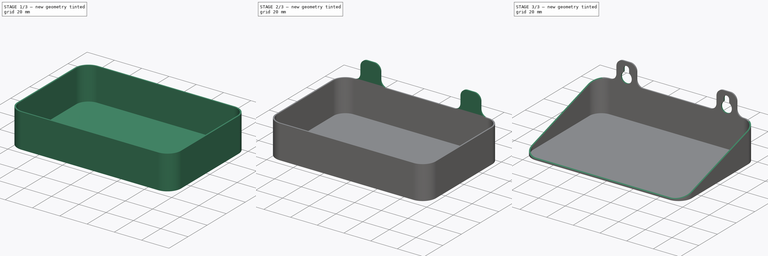
[diagram: build sequence overview — one tinted view per stage of 3, left to right]
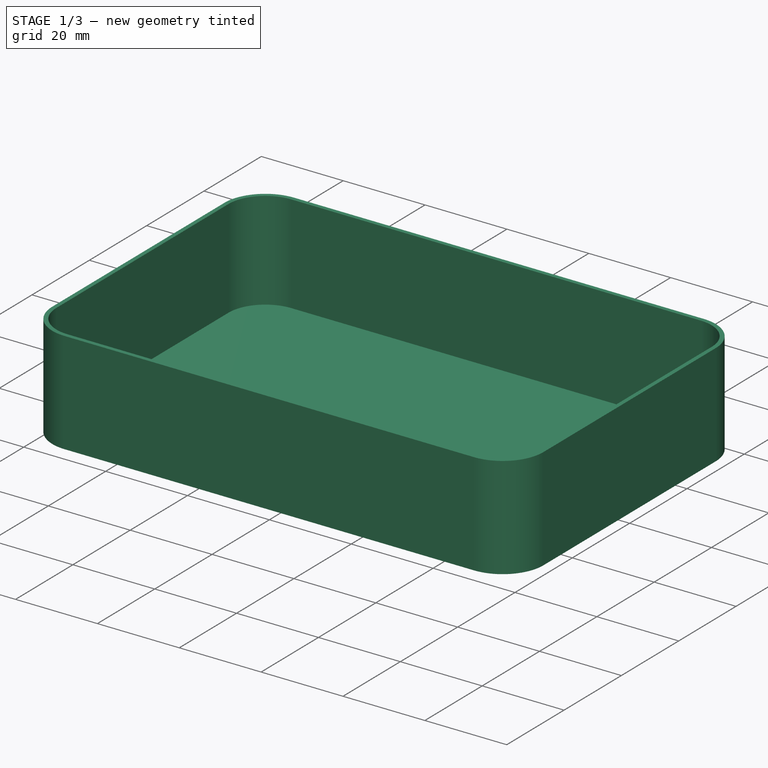
[diagram: stage 1 of 3 — iso view after this stage's code; geometry added in this stage tinted green]
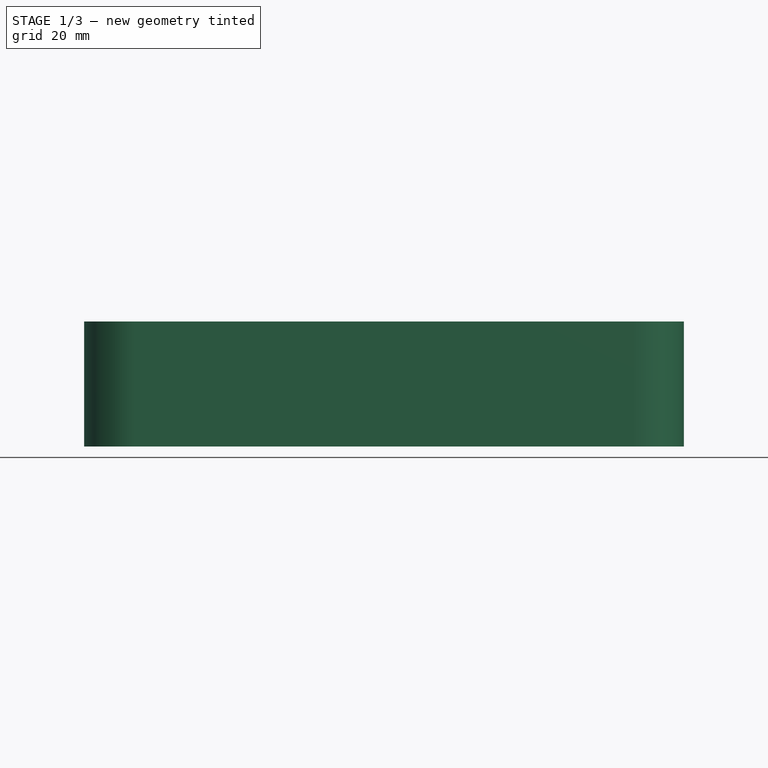
[diagram: stage 1 of 3 — front view after this stage's code; geometry added in this stage tinted green]
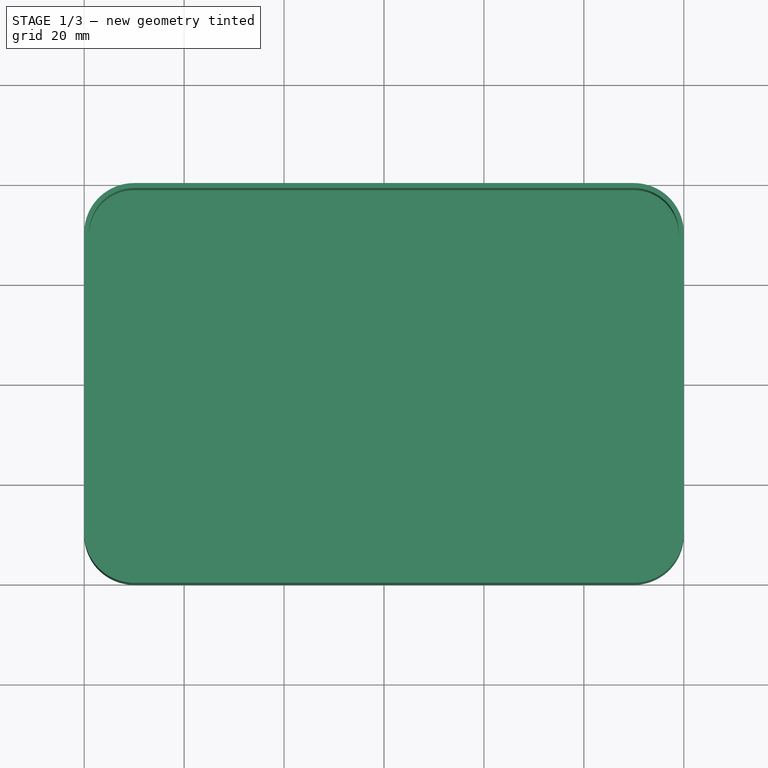
[diagram: stage 1 of 3 — top view after this stage's code; geometry added in this stage tinted green]
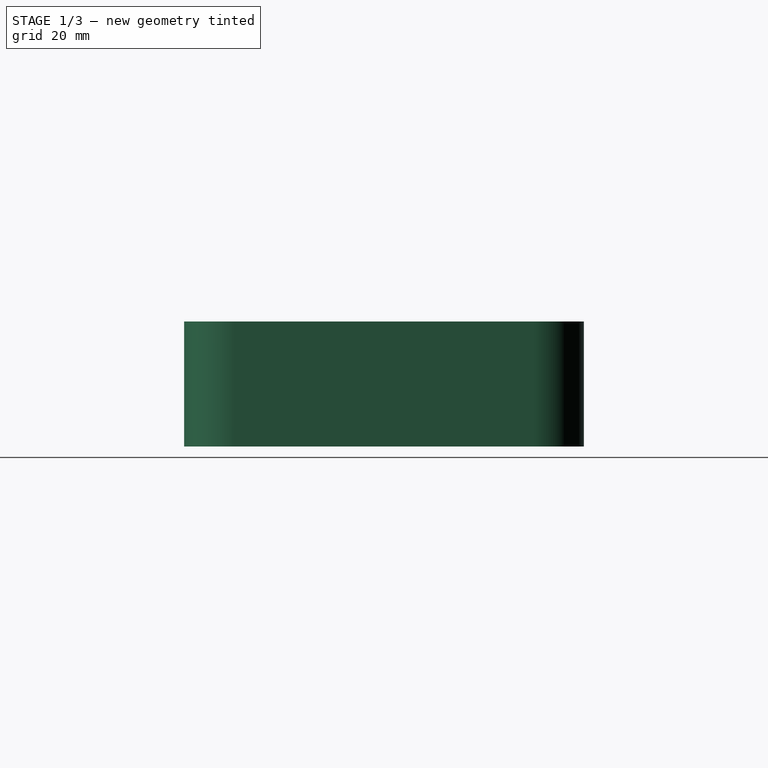
[diagram: stage 1 of 3 — right view after this stage's code; geometry added in this stage tinted green]
FCSTD DOCUMENT  (FreeCAD 1.0R39319 (Git))
Label: Cork board bin
License: All rights reserved
objects: Sketcher::SketchObject×4, PartDesign::Pad×2, PartDesign::Pocket×2, PartDesign::Thickness×1, PartDesign::Fillet×1, PartDesign::Body×1
note: 27 computed .brp shape members not serialized (recipe doc carries the construction recipe); baked Part::Feature solids carry a one-line shape summary decoded from their .brp

FEATURE [Sketcher::SketchObject] Sketch
  ArcFitTolerance = 1e-06
  AttachmentSupport = -> [XY_Plane]
  FullyConstrained = true
  MakeInternals = false
  MapMode = 5
  sketch-geometry (10):
    g0: LineSegment StartX=-50 StartY=-40 StartZ=0 EndX=50 EndY=-40 EndZ=0
    g1: LineSegment StartX=60 StartY=-30 StartZ=0 EndX=60 EndY=30 EndZ=0
    g2: LineSegment StartX=50 StartY=40 StartZ=0 EndX=-50 EndY=40 EndZ=0
    g3: LineSegment StartX=-60 StartY=30 StartZ=0 EndX=-60 EndY=-30 EndZ=0
    g4: ArcOfCircle CenterX=-50 CenterY=-30 CenterZ=0 NormalX=0 NormalY=0 NormalZ=1 AngleXU=0 Radius=10 StartAngle=3.14159 EndAngle=4.71239
    g5: ArcOfCircle CenterX=50 CenterY=-30 CenterZ=0 NormalX=0 NormalY=0 NormalZ=1 AngleXU=0 Radius=10 StartAngle=4.71239 EndAngle=6.28319
    g6: ArcOfCircle CenterX=50 CenterY=30 CenterZ=0 NormalX=0 NormalY=0 NormalZ=1 AngleXU=0 Radius=10 StartAngle=2.127e-13 EndAngle=1.5708
    g7: ArcOfCircle CenterX=-50 CenterY=30 CenterZ=0 NormalX=0 NormalY=0 NormalZ=1 AngleXU=0 Radius=10 StartAngle=1.5708 EndAngle=3.14159
    g8: GeomPoint [constr] X=60 Y=40 Z=0
    g9: GeomPoint [constr] X=0 Y=0 Z=0
  constraints (22):
    c: Tangent(g0,g4) = -1.5708
    c: Tangent(g0,g5) = -1.5708
    c: Tangent(g1,g5) = -1.5708
    c: Tangent(g1,g6) = -1.5708
    c: Tangent(g2,g6) = -1.5708
    c: Tangent(g2,g7) = -1.5708
    c: Tangent(g3,g7) = -1.5708
    c: Tangent(g3,g4) = -1.5708
    c: Horizontal(g0)
    c: Horizontal(g2)
    c: Vertical(g1)
    c: Vertical(g3)
    c: Equal(g4,g5)
    c: Equal(g5,g6)
    c: Equal(g6,g7)
    c: Symmetric(g2,g0,g9)
    c: PointOnObject(g8,g1)
    c: PointOnObject(g8,g2)
    c: Distance(g1,g3) = 120
    c: Distance(g0,g2) = 80
    c: Radius(g5) = 10
    c: Coincident(g9,g-1)
FEATURE [PartDesign::Pad] Pad
  Direction = (0,0,1)
  Length = 25
  Length2 = 10
  Profile = -> Sketch
  ReferenceAxis = -> Sketch [N_Axis]
  Refine = true
  Suppressed = false
  Type = 0
FEATURE [PartDesign::Thickness] Thickness
  Base = -> Pad [Face10]
  BaseFeature = -> Pad
  Intersection = false
  Join = 0
  Mode = 1
  Refine = true
  Reversed = true
  SupportTransform = false
  Suppressed = false
  Value = 1
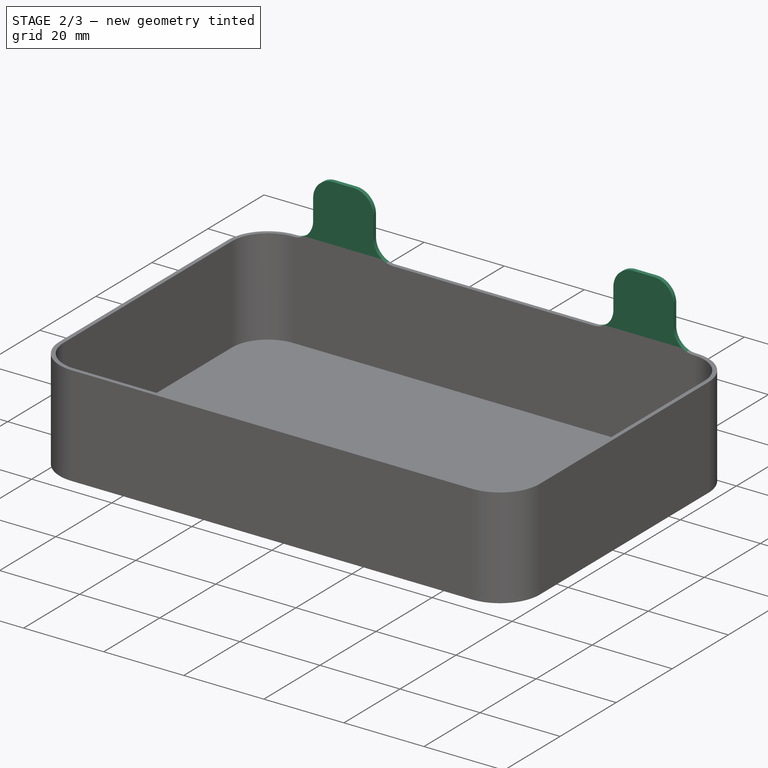
[diagram: stage 2 of 3 — iso view after this stage's code; geometry added in this stage tinted green]
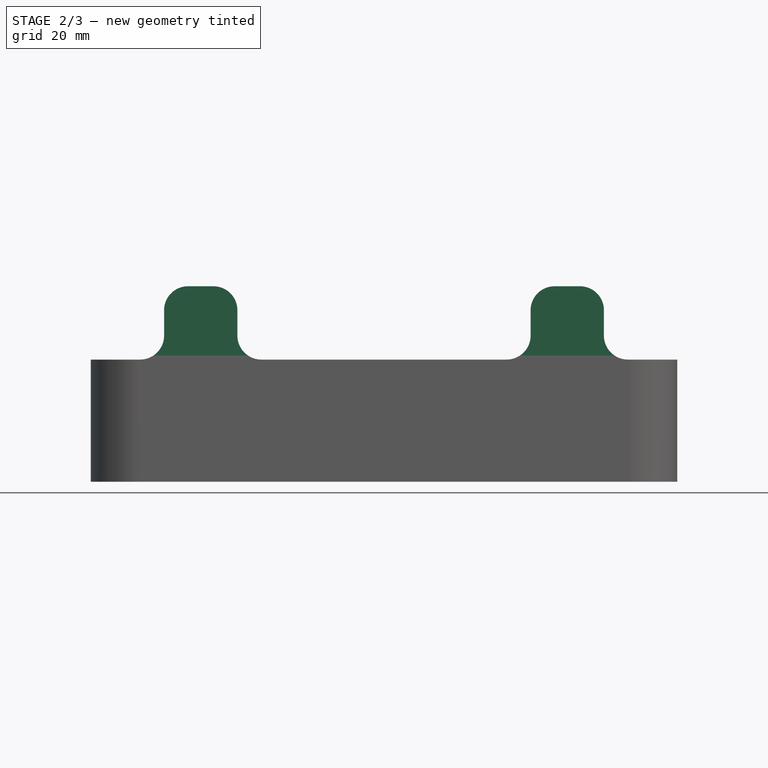
[diagram: stage 2 of 3 — front view after this stage's code; geometry added in this stage tinted green]
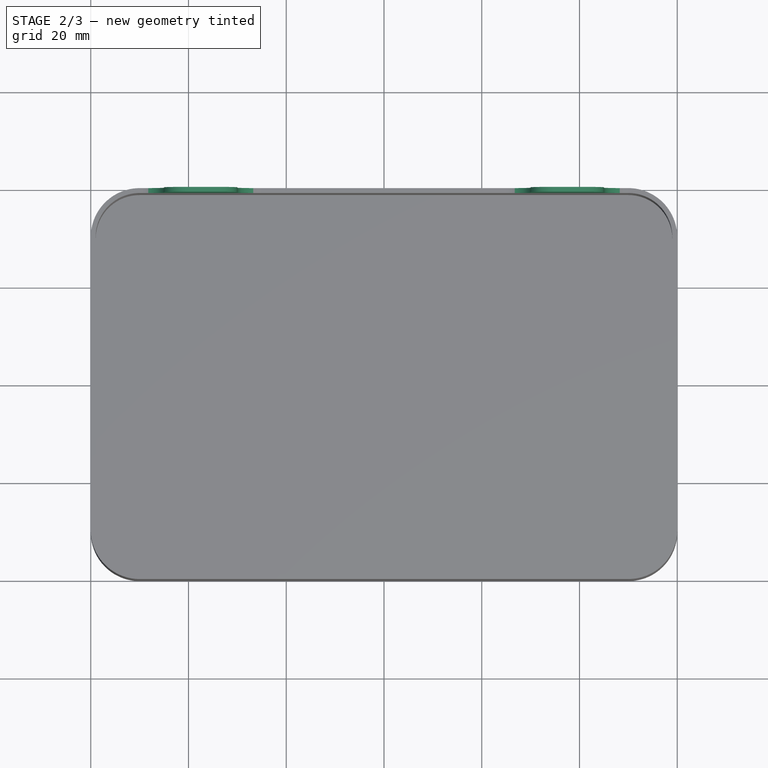
[diagram: stage 2 of 3 — top view after this stage's code; geometry added in this stage tinted green]
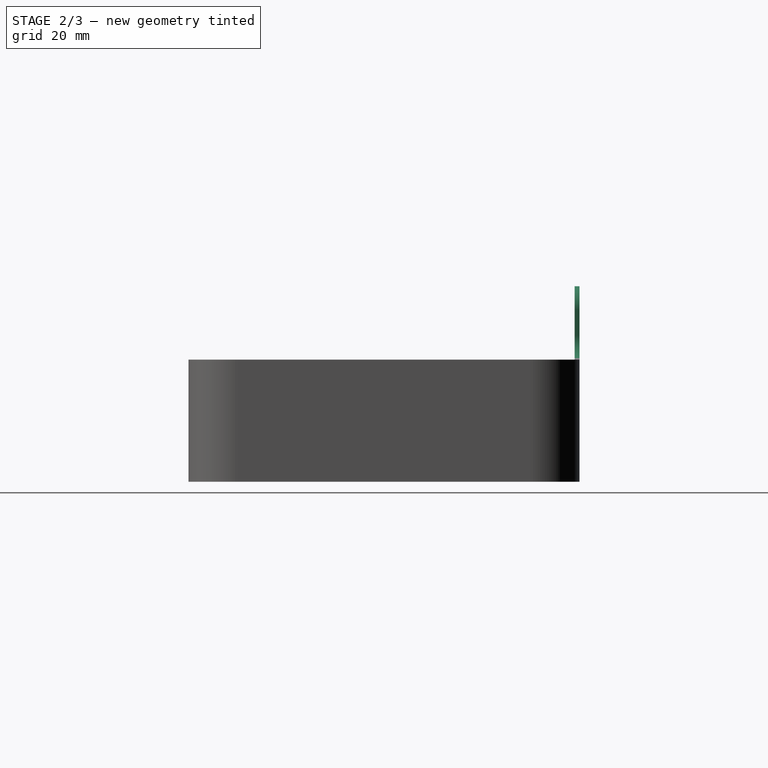
[diagram: stage 2 of 3 — right view after this stage's code; geometry added in this stage tinted green]
FEATURE [Sketcher::SketchObject] Sketch001
  ArcFitTolerance = 1e-06
  AttachmentSupport = -> [Thickness]
  ExternalGeometry = -> [Thickness]
  FullyConstrained = true
  MakeInternals = false
  MapMode = 5
  Placement = pos=(0,0,25) rot=(0,0,1;0rad)
  sketch-geometry (8):
    g0: LineSegment StartX=-45 StartY=40 StartZ=0 EndX=-45 EndY=39 EndZ=0
    g1: LineSegment StartX=-45 StartY=39 StartZ=0 EndX=-30 EndY=39 EndZ=0
    g2: LineSegment StartX=-30 StartY=39 StartZ=0 EndX=-30 EndY=40 EndZ=0
    g3: LineSegment StartX=-30 StartY=40 StartZ=0 EndX=-45 EndY=40 EndZ=0
    g4: LineSegment StartX=30 StartY=39 StartZ=0 EndX=45 EndY=39 EndZ=0
    g5: LineSegment StartX=45 StartY=39 StartZ=0 EndX=45 EndY=40 EndZ=0
    g6: LineSegment StartX=45 StartY=40 StartZ=0 EndX=30 EndY=40 EndZ=0
    g7: LineSegment StartX=30 StartY=40 StartZ=0 EndX=30 EndY=39 EndZ=0
  constraints (23):
    c: Coincident(g0,g1)
    c: Coincident(g1,g2)
    c: Coincident(g2,g3)
    c: Coincident(g3,g0)
    c: Vertical(g0)
    c: Vertical(g2)
    c: Horizontal(g1)
    c: Horizontal(g3)
    c: PointOnObject(g0,g-4)
    c: PointOnObject(g1,g-3)
    c: Coincident(g4,g5)
    c: Coincident(g5,g6)
    c: Coincident(g6,g7)
    c: Coincident(g7,g4)
    c: Horizontal(g4)
    c: Horizontal(g6)
    c: Vertical(g5)
    c: Vertical(g7)
    c: PointOnObject(g4,g-3)
    c: Symmetric(g5,g0,g-2)
    c: Equal(g3,g6)
    c: Distance(g-4,g0) = 5
    c: Distance(g3) = 15
FEATURE [PartDesign::Pad] Pad001
  BaseFeature = -> Thickness
  Direction = (0,0,1)
  Length = 15
  Length2 = 10
  Profile = -> Sketch001
  ReferenceAxis = -> Sketch001 [N_Axis]
  Refine = true
  Suppressed = false
  Type = 0
FEATURE [PartDesign::Fillet] Fillet
  Base = -> Pad001 [Edge66,Edge4,Edge46,Edge36,Edge64,Edge7,Edge2,Edge26]
  BaseFeature = -> Pad001
  Radius = 4.9
  Refine = true
  SupportTransform = false
  Suppressed = false
  UseAllEdges = false
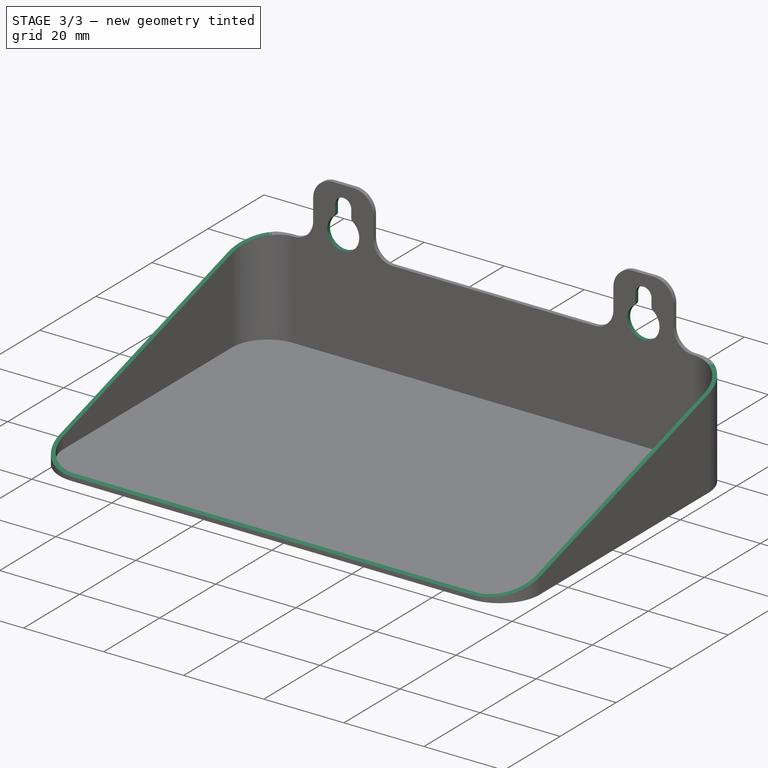
[diagram: stage 3 of 3 — iso view after this stage's code; geometry added in this stage tinted green]
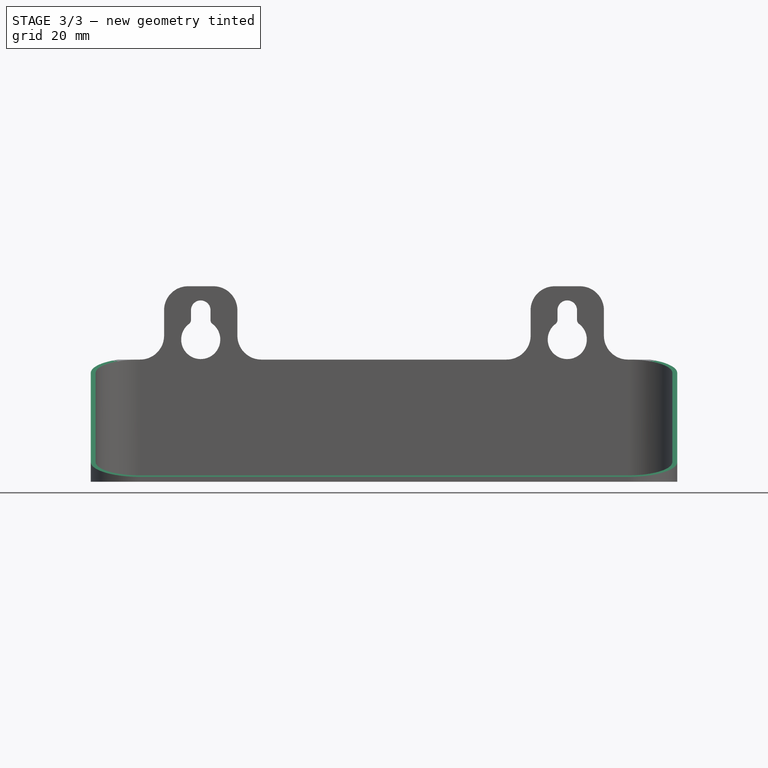
[diagram: stage 3 of 3 — front view after this stage's code; geometry added in this stage tinted green]
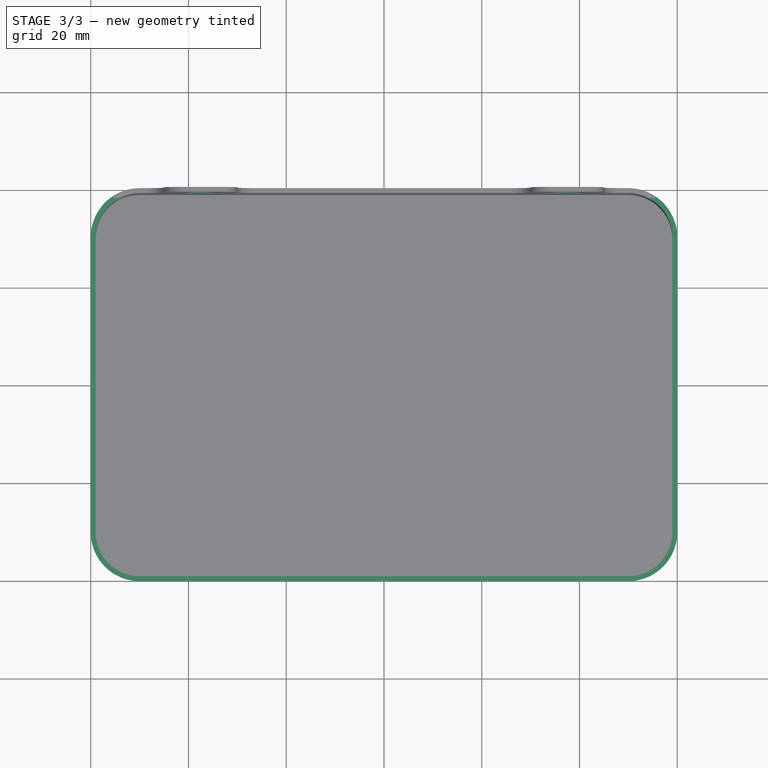
[diagram: stage 3 of 3 — top view after this stage's code; geometry added in this stage tinted green]
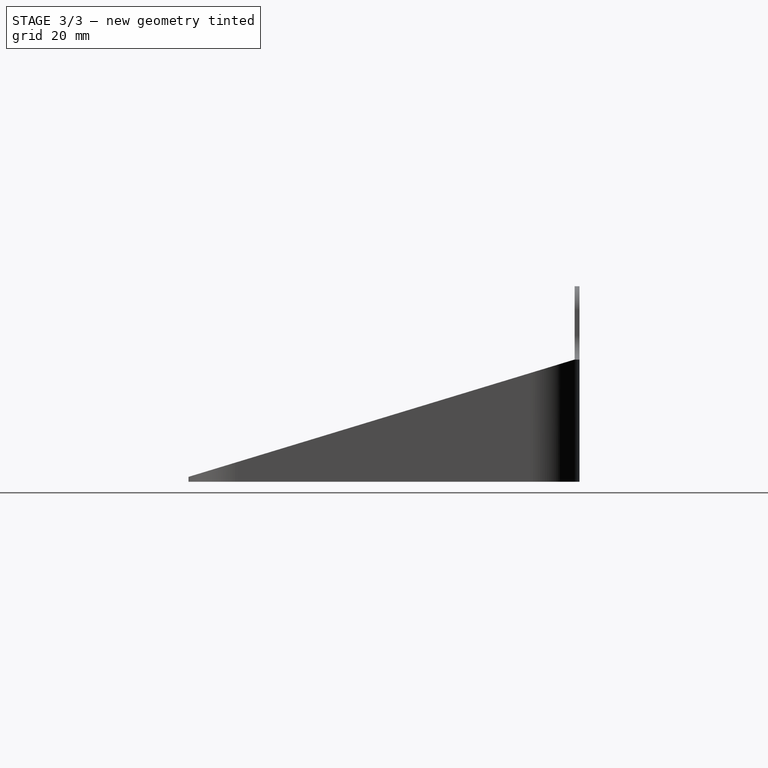
[diagram: stage 3 of 3 — right view after this stage's code; geometry added in this stage tinted green]
FEATURE [Sketcher::SketchObject] Sketch002
  ArcFitTolerance = 1e-06
  AttachmentSupport = -> [Fillet]
  ExternalGeometry = -> [Fillet]
  FullyConstrained = true
  MakeInternals = false
  MapMode = 5
  Placement = pos=(0,39,0) rot=(1,0,0;1.5708rad)
  sketch-geometry (17):
    g0: LineSegment [constr] StartX=-37.5 StartY=40 StartZ=0 EndX=-37.5 EndY=0 EndZ=0
    g1: LineSegment [constr] StartX=-40.1 StartY=35.1 StartZ=0 EndX=-34.9 EndY=35.1 EndZ=0
    g2: Circle [constr] CenterX=-37.5 CenterY=35.1 CenterZ=0 NormalX=0 NormalY=0 NormalZ=1 AngleXU=0 Radius=2
    g3: GeomPoint [constr] X=-37.5 Y=33.1 Z=0
    g4: Circle [constr] CenterX=-37.5 CenterY=29.1 CenterZ=0 NormalX=0 NormalY=0 NormalZ=1 AngleXU=0 Radius=4
    g5: ArcOfCircle CenterX=-37.5 CenterY=35.1 CenterZ=0 NormalX=0 NormalY=0 NormalZ=1 AngleXU=0 Radius=2 StartAngle=-8e-15 EndAngle=3.14159
    g6: LineSegment StartX=-39.5 StartY=35.1 StartZ=0 EndX=-39.5 EndY=33.1 EndZ=0
    g7: LineSegment StartX=-35.5 StartY=35.1 StartZ=0 EndX=-35.5 EndY=33.1 EndZ=0
    g8: ArcOfCircle CenterX=-37.5 CenterY=29.1 CenterZ=0 NormalX=0 NormalY=0 NormalZ=1 AngleXU=0 Radius=4 StartAngle=2.2143 EndAngle=7.21048
    g9: ArcOfCircle CenterX=-34.5 CenterY=33.1 CenterZ=0 NormalX=0 NormalY=0 NormalZ=1 AngleXU=0 Radius=1 StartAngle=3.14159 EndAngle=4.06889
    g10: ArcOfCircle CenterX=-40.5 CenterY=33.1 CenterZ=0 NormalX=0 NormalY=0 NormalZ=1 AngleXU=0 Radius=1 StartAngle=5.35589 EndAngle=6.28319
    g11: LineSegment StartX=35.5 StartY=35.1 StartZ=0 EndX=35.5 EndY=33.1 EndZ=0
    g12: ArcOfCircle CenterX=34.5 CenterY=33.1 CenterZ=0 NormalX=0 NormalY=0 NormalZ=1 AngleXU=0 Radius=1 StartAngle=5.35589 EndAngle=6.28319
    g13: ArcOfCircle CenterX=37.5 CenterY=29.1 CenterZ=0 NormalX=0 NormalY=0 NormalZ=1 AngleXU=0 Radius=4 StartAngle=2.2143 EndAngle=7.21048
    g14: ArcOfCircle CenterX=40.5 CenterY=33.1 CenterZ=0 NormalX=0 NormalY=0 NormalZ=1 AngleXU=0 Radius=1 StartAngle=3.14159 EndAngle=4.06889
    g15: LineSegment StartX=39.5 StartY=33.1 StartZ=0 EndX=39.5 EndY=35.1 EndZ=0
    g16: ArcOfCircle CenterX=37.5 CenterY=35.1 CenterZ=0 NormalX=0 NormalY=0 NormalZ=1 AngleXU=0 Radius=2 StartAngle=-9e-16 EndAngle=3.14159
  constraints (45):
    c: Symmetric(g-7,g-7,g0)
    c: Vertical(g0)
    c: PointOnObject(g0,g-1)
    c: Coincident(g1,g-4)
    c: Coincident(g1,g-3)
    c: Diameter(g2) = 4
    c: PointOnObject(g2,g0)
    c: PointOnObject(g2,g1)
    c: PointOnObject(g3,g2)
    c: PointOnObject(g3,g0)
    c: PointOnObject(g4,g0)
    c: PointOnObject(g3,g4)
    c: Diameter(g4) = 8
    c: Coincident(g5,g2)
    c: PointOnObject(g5,g1)
    c: PointOnObject(g5,g2)
    c: PointOnObject(g5,g1)
    c: Coincident(g6,g5)
    c: Vertical(g6)
    c: Vertical(g7)
    c: Equal(g7,g6)
    c: Horizontal(g6,g3)
    c: Coincident(g7,g5)
    c: Coincident(g8,g4)
    c: PointOnObject(g8,g4)
    c: Tangent(g10,g6) = 1.5708
    c: Tangent(g9,g7) = -1.5708
    c: Tangent(g9,g8) = 1.5708
    c: Tangent(g10,g8) = 1.5708
    c: Vertical(g11)
    c: Tangent(g11,g12) = 1.5708
    c: Tangent(g12,g13) = 1.5708
    c: Tangent(g13,g14) = 1.5708
    c: Tangent(g14,g15) = 1.5708
    c: Tangent(g15,g16) = -1.5708
    c: Coincident(g16,g11)
    c: Vertical(g15)
    c: Horizontal(g15,g11)
    c: Horizontal(g14,g11)
    c: Horizontal(g13,g12)
    c: Equal(g11,g7)
    c: Equal(g9,g12)
    c: Equal(g5,g16)
    c: Equal(g8,g13)
    c: Symmetric(g11,g5,g-2)
FEATURE [PartDesign::Pocket] Pocket
  BaseFeature = -> Fillet
  Direction = (0,1,-2e-16)
  Length = 5
  Length2 = 5
  Profile = -> Sketch002
  ReferenceAxis = -> Sketch002 [N_Axis]
  Refine = true
  Suppressed = false
  Type = 0
FEATURE [Sketcher::SketchObject] Sketch003
  ArcFitTolerance = 1e-06
  AttachmentSupport = -> [Pocket]
  ExternalGeometry = -> [Pocket]
  FullyConstrained = true
  MakeInternals = false
  MapMode = 5
  Placement = pos=(60,0,0) rot=(0.57735,0.57735,0.57735;2.0944rad)
  sketch-geometry (3):
    g0: LineSegment StartX=-40 StartY=25 StartZ=0 EndX=-40 EndY=1 EndZ=0
    g1: LineSegment StartX=-40 StartY=1 StartZ=0 EndX=39 EndY=25 EndZ=0
    g2: LineSegment StartX=39 StartY=25 StartZ=0 EndX=-40 EndY=25 EndZ=0
  constraints (7):
    c: Coincident(g0,g-4)
    c: PointOnObject(g0,g-4)
    c: Coincident(g1,g0)
    c: Coincident(g1,g-3)
    c: Coincident(g2,g1)
    c: Coincident(g2,g0)
    c: Distance(g0,g-4) = 1
FEATURE [PartDesign::Pocket] Pocket001
  BaseFeature = -> Pocket
  Direction = (-1,0,0)
  Length = 5
  Length2 = 5
  Profile = -> Sketch003
  ReferenceAxis = -> Sketch003 [N_Axis]
  Refine = true
  Suppressed = false
  Type = 1
FEATURE [PartDesign::Body] Body
  AllowCompound = false
  Group = -> [Sketch,Pad,Thickness,Sketch001,Pad001,Fillet,Sketch002,Pocket,Sketch003,Pocket001]
  Origin = -> Origin
  Tip = -> Pocket001
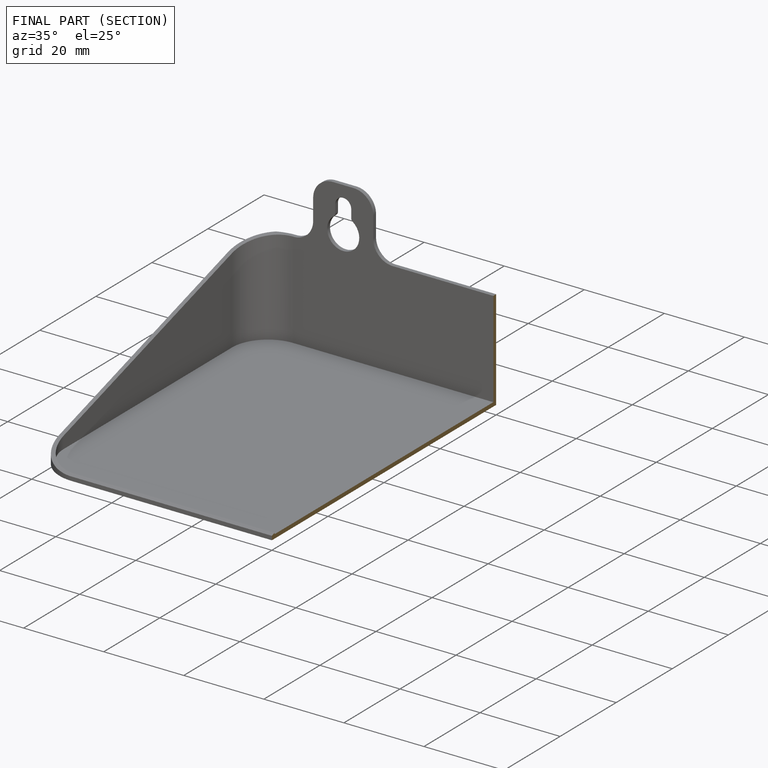
[diagram: finished part — half-section view (interior)]
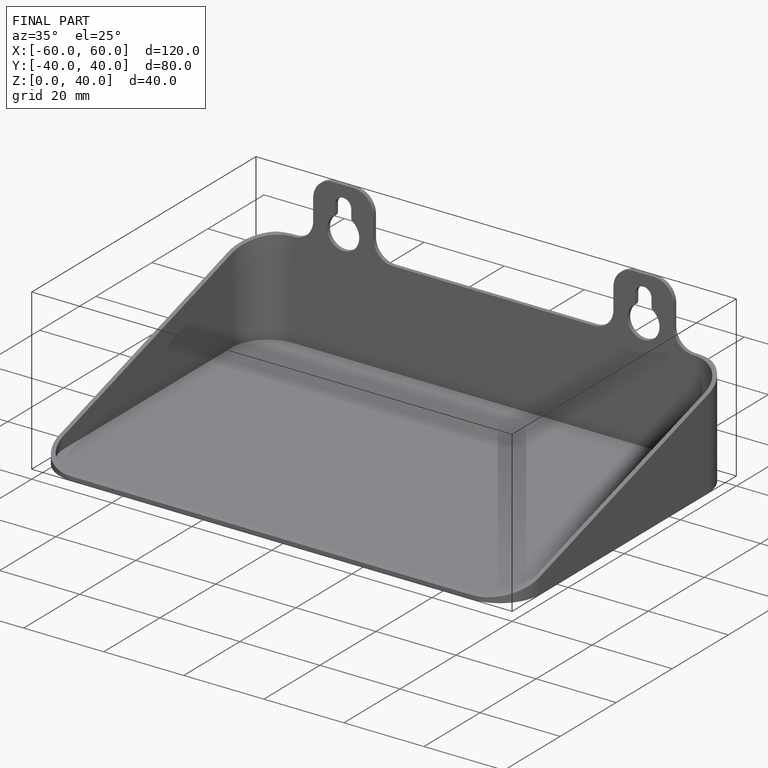
[diagram: finished part — iso view with bounding-box wireframe]
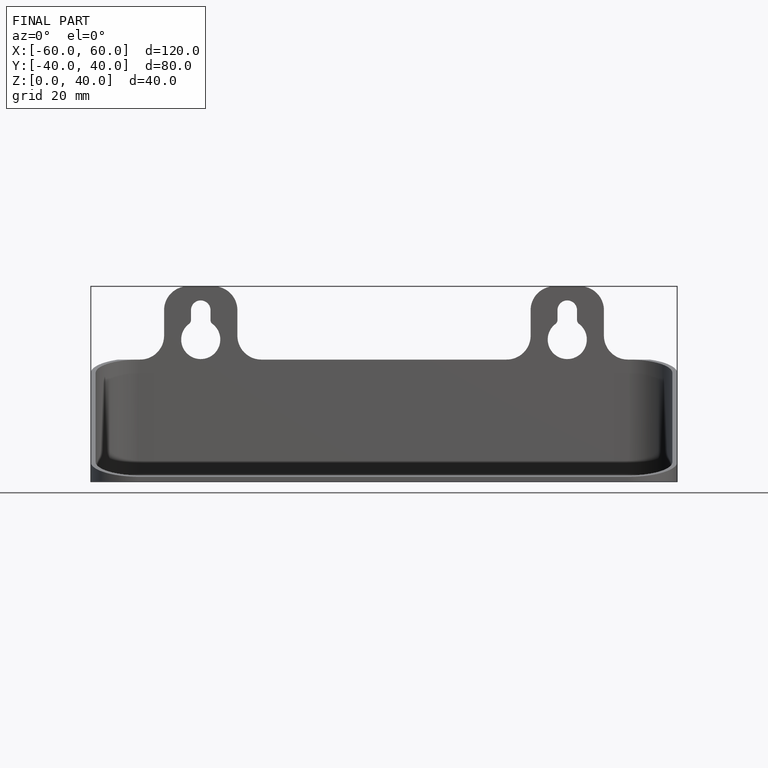
[diagram: finished part — front view with bounding-box wireframe]
